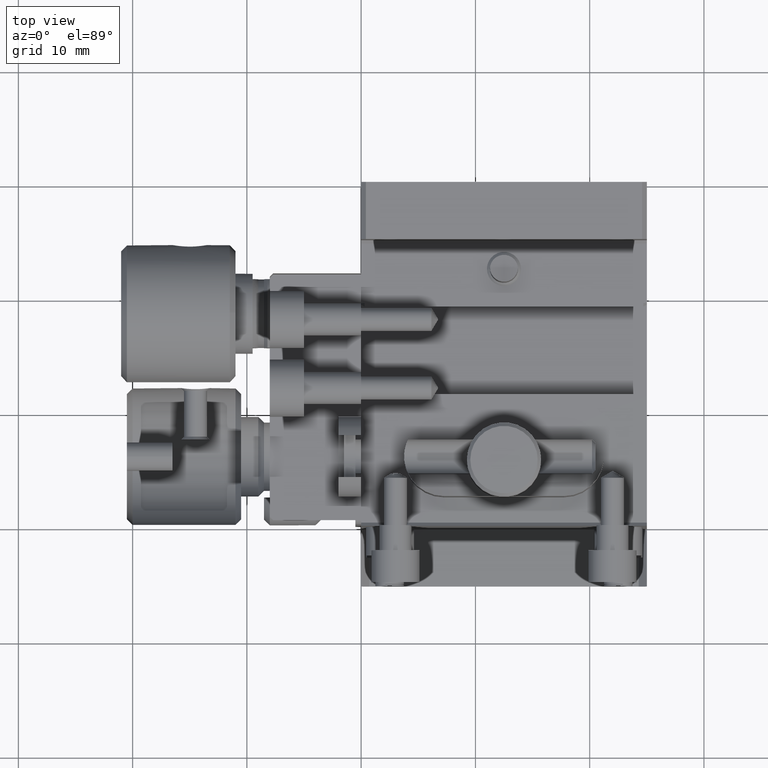
[diagram: clean part render]
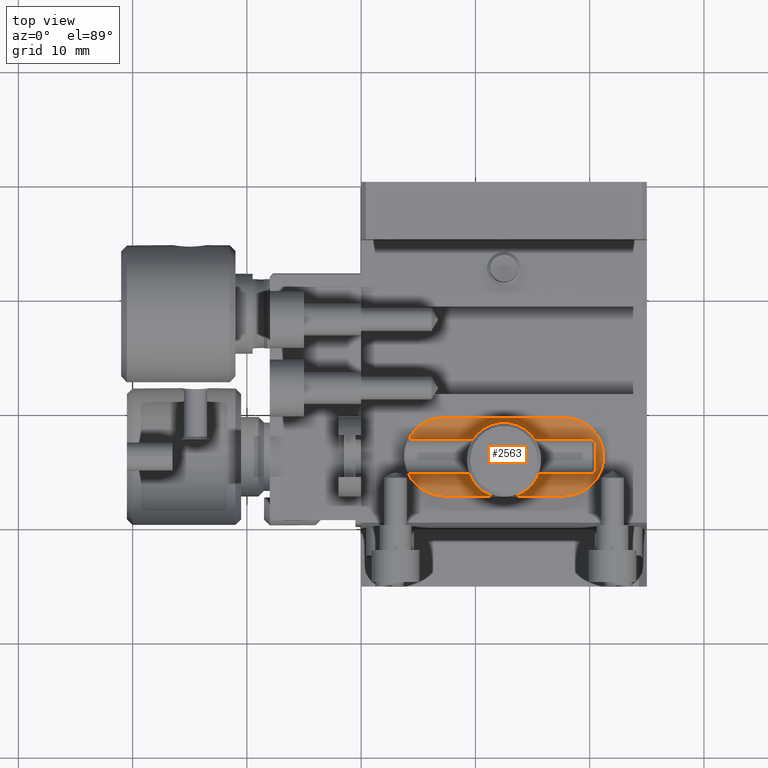
[diagram: same view with one face highlighted and labeled with its STEP entity id]
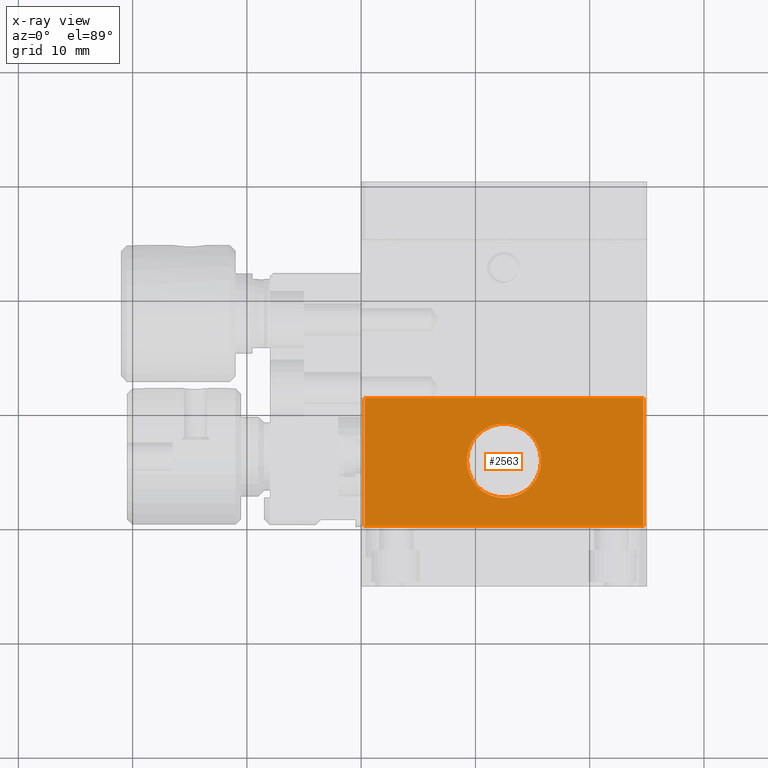
[diagram: x-ray of the same camera — body ghosted, the highlighted face saturated]
A machine part, top view. The second image highlights one B-rep face of the part: STEP entity #2563.
The next image is the same camera in x-ray: the body ghosted, the highlighted face saturated — about 0% of this face is hidden behind the body in this view.
In plain terms, the highlighted planar face has unit normal (-0, 0, -1).
Its self-contained STEP definition (entity closure, byte-faithful):
#187 = ORIENTED_EDGE ( 'NONE', *, *, #3223, .T. ) ;
#289 = CARTESIAN_POINT ( 'NONE',  ( 0.000000000000000000, 20.00000000000000000, -6.999999999999999112 ) ) ;
#381 = DIRECTION ( 'NONE',  ( 1.000000000000000000, -0.000000000000000000, -0.000000000000000000 ) ) ;
#444 = FACE_BOUND ( 'NONE', #2967, .T. ) ;
#492 = LINE ( 'NONE', #2582, #2257 ) ;
#769 = ORIENTED_EDGE ( 'NONE', *, *, #9223, .F. ) ;
#792 = ORIENTED_EDGE ( 'NONE', *, *, #8701, .T. ) ;
#924 = ORIENTED_EDGE ( 'NONE', *, *, #4725, .T. ) ;
#1135 = DIRECTION ( 'NONE',  ( 1.000000000000000000, 0.000000000000000000, 0.000000000000000000 ) ) ;
#1831 = EDGE_LOOP ( 'NONE', ( #924, #187, #792, #6406 ) ) ;
#2031 = AXIS2_PLACEMENT_3D ( 'NONE', #4697, #4911, #1135 ) ;
#2066 = DIRECTION ( 'NONE',  ( -0.000000000000000000, -1.000000000000000000, -0.000000000000000000 ) ) ;
#2129 = EDGE_CURVE ( 'NONE', #8600, #3650, #3308, .T. ) ;
#2257 = VECTOR ( 'NONE', #6913, 1000.000000000000000 ) ;
#2270 = VERTEX_POINT ( 'NONE', #3736 ) ;
#2563 = ADVANCED_FACE ( 'NONE', ( #5566, #444 ), #5476, .F. ) ;
#2582 = CARTESIAN_POINT ( 'NONE',  ( 0.3000000000000107025, 45.00000000000000000, -6.999999999999993783 ) ) ;
#2670 = DIRECTION ( 'NONE',  ( -1.000000000000000000, 0.000000000000000000, 7.109522442527910597E-17 ) ) ;
#2794 = CIRCLE ( 'NONE', #2031, 3.249999999999999556 ) ;
#2967 = EDGE_LOOP ( 'NONE', ( #769 ) ) ;
#3210 = VERTEX_POINT ( 'NONE', #8509 ) ;
#3223 = EDGE_CURVE ( 'NONE', #3210, #6018, #492, .T. ) ;
#3308 = LINE ( 'NONE', #3441, #4518 ) ;
#3385 = VECTOR ( 'NONE', #381, 1000.000000000000000 ) ;
#3441 = CARTESIAN_POINT ( 'NONE',  ( 24.69999999999999929, 45.00000000000000000, -7.000000000000000888 ) ) ;
#3641 = VECTOR ( 'NONE', #8525, 1000.000000000000000 ) ;
#3650 = VERTEX_POINT ( 'NONE', #5792 ) ;
#3736 = CARTESIAN_POINT ( 'NONE',  ( 15.75000000000000000, 25.69999999999999929, -7.000000000000002665 ) ) ;
#4518 = VECTOR ( 'NONE', #2066, 1000.000000000000000 ) ;
#4697 = CARTESIAN_POINT ( 'NONE',  ( 12.50000000000000000, 25.69999999999999929, -7.000000000000002665 ) ) ;
#4725 = EDGE_CURVE ( 'NONE', #8600, #3210, #5020, .T. ) ;
#4911 = DIRECTION ( 'NONE',  ( 0.000000000000000000, 0.000000000000000000, 1.000000000000000000 ) ) ;
#5020 = LINE ( 'NONE', #6396, #3641 ) ;
#5305 = CARTESIAN_POINT ( 'NONE',  ( 0.3000000000000123124, 20.00000000000000000, -6.999999999999995559 ) ) ;
#5476 = PLANE ( 'NONE',  #6950 ) ;
#5566 = FACE_OUTER_BOUND ( 'NONE', #1831, .T. ) ;
#5792 = CARTESIAN_POINT ( 'NONE',  ( 24.69999999999999218, 20.00000000000000000, -6.999999999999997335 ) ) ;
#6018 = VERTEX_POINT ( 'NONE', #5305 ) ;
#6396 = CARTESIAN_POINT ( 'NONE',  ( 25.00000000000000000, 31.20000000000001705, -7.000000000000007994 ) ) ;
#6406 = ORIENTED_EDGE ( 'NONE', *, *, #2129, .F. ) ;
#6798 = LINE ( 'NONE', #289, #3385 ) ;
#6913 = DIRECTION ( 'NONE',  ( -0.000000000000000000, -1.000000000000000000, -0.000000000000000000 ) ) ;
#6950 = AXIS2_PLACEMENT_3D ( 'NONE', #9085, #8329, #2670 ) ;
#8329 = DIRECTION ( 'NONE',  ( -7.109522442527910597E-17, 0.000000000000000000, -1.000000000000000000 ) ) ;
#8355 = CARTESIAN_POINT ( 'NONE',  ( 24.69999999999999929, 31.20000000000000639, -7.000000000000002665 ) ) ;
#8509 = CARTESIAN_POINT ( 'NONE',  ( 0.3000000000000139222, 31.20000000000000995, -7.000000000000002665 ) ) ;
#8525 = DIRECTION ( 'NONE',  ( -1.000000000000000000, 0.000000000000000000, 0.000000000000000000 ) ) ;
#8600 = VERTEX_POINT ( 'NONE', #8355 ) ;
#8701 = EDGE_CURVE ( 'NONE', #6018, #3650, #6798, .T. ) ;
#9085 = CARTESIAN_POINT ( 'NONE',  ( 0.3000000000000139777, 45.00000000000000000, -6.999999999999999112 ) ) ;
#9223 = EDGE_CURVE ( 'NONE', #2270, #2270, #2794, .T. ) ;